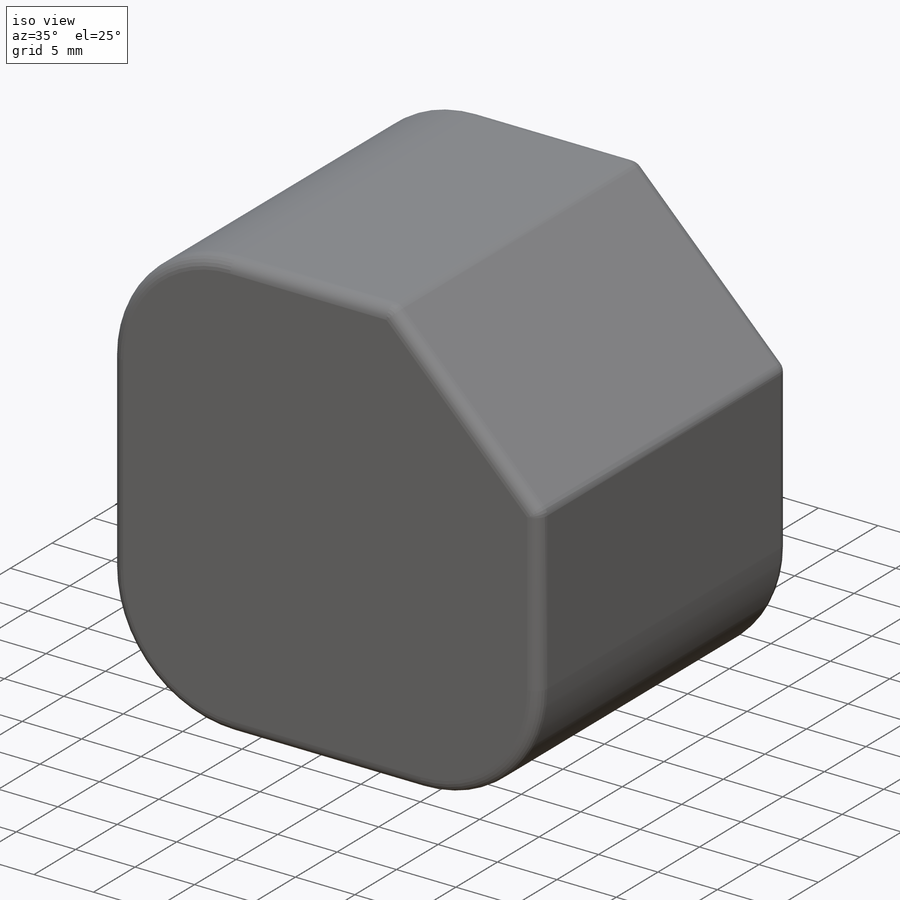
[diagram: iso view]
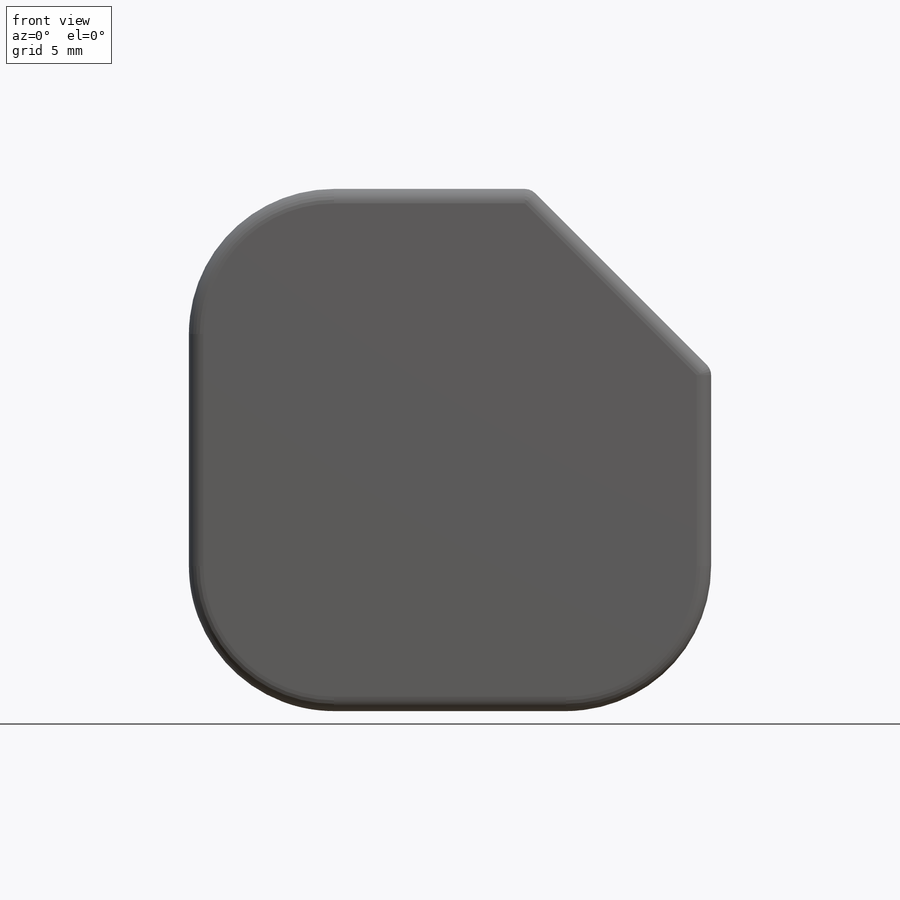
[diagram: front view]
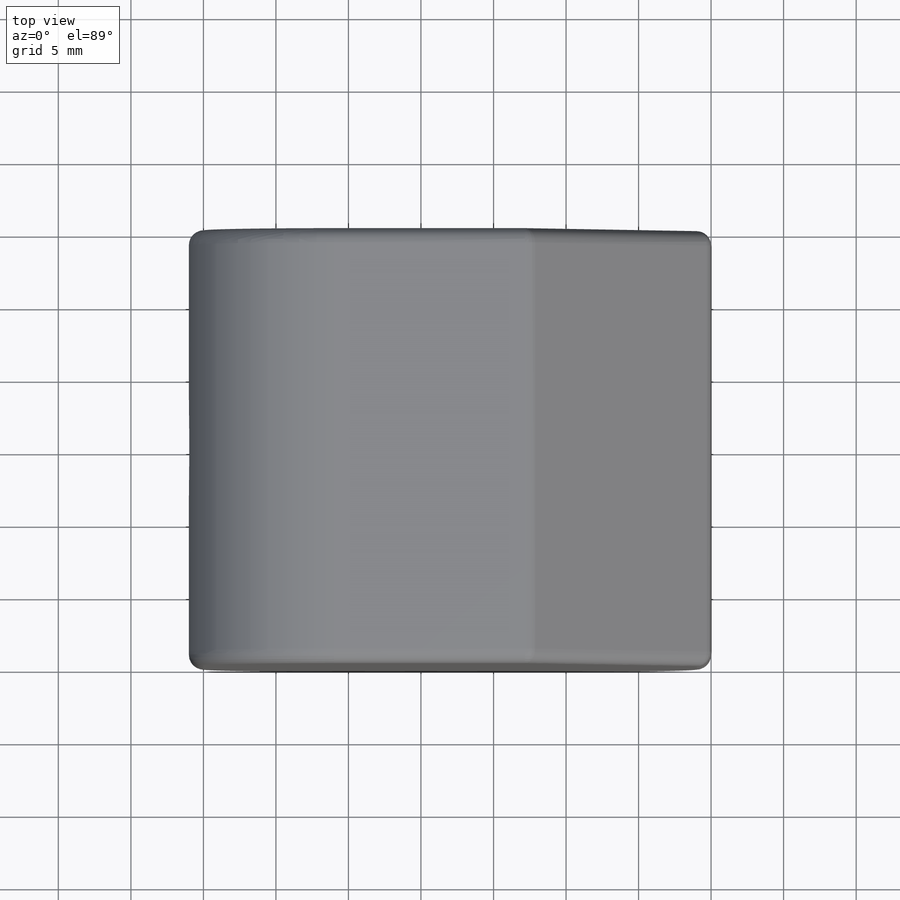
[diagram: top view]
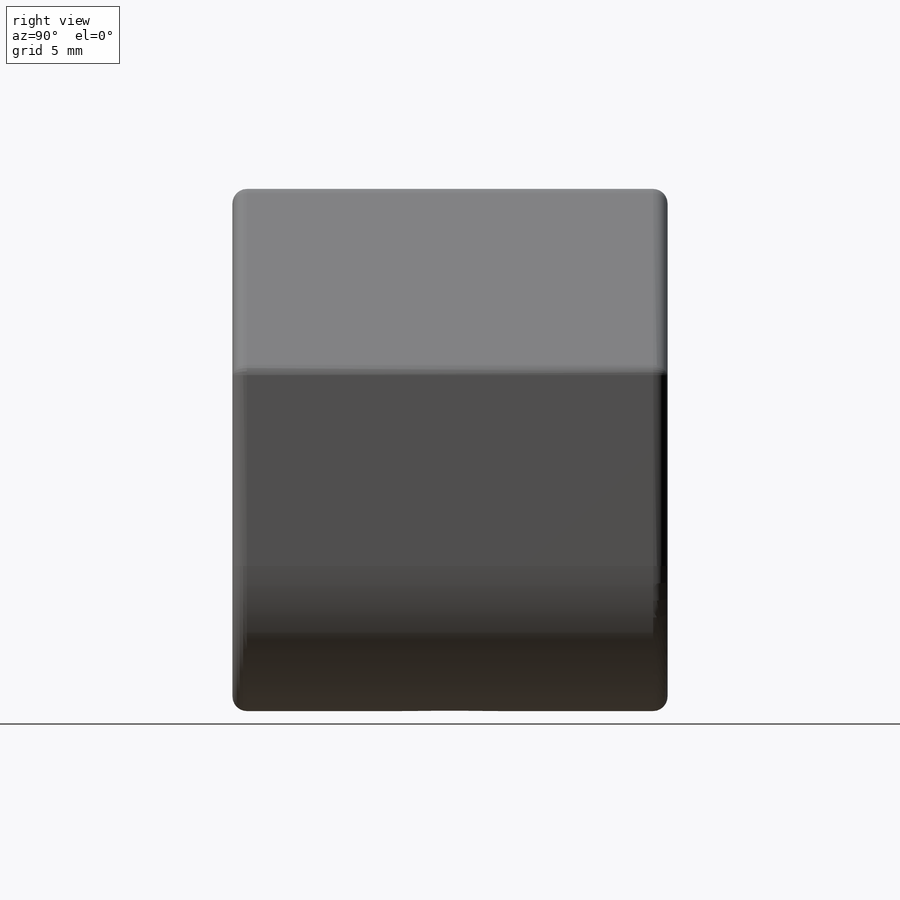
[diagram: right view]
SOLIDWORKS PART (.sldprt)
format: sldprt  version: not decoded by parser v0  size: 423,424 bytes
history: native  units: mm
features: sketch x11, thread x5, cut_extrude x3, hole x3, fillet x2, material x1, extrude x1 (+16 scaffold rows collapsed)
feature tree (42):
  scaffold x16  (default folders/planes/origin — collapsed)
  material  "Stainless Steel (ferritic)"
  sketch  "Sketch1"  dims[D1=36.0mm]
  extrude  "Boss-Extrude1"  Depth=30mm
  sketch  "Sketch2"  dims[D2=20.0mm D1=16.706mm]
  cut_extrude  "Cut-Extrude1"  Depth=4mm
  sketch  "Sketch4"  dims[D2=20.0mm D1=16.706mm]
  cut_extrude  "Cut-Extrude2"  Depth=4mm
  hole  "M8x1.0 Tapped Hole1"  Diameter=7mm Depth=15mm
  sketch  "Sketch6"
  sketch  "Sketch5"  dims[hole-wizard template sketch: 46 standard entries collapsed; hole parameters kept: c15.Tap Drill Dia.=7.0mm c15.Tap Drill Depth=15.0mm c15.D3=~14.816244mm c15.Drill Angle=118.0deg]
  thread  "Hole Thread1"  Diameter=12mm  [1 undecoded]
  hole  "M8x1.0 Tapped Hole2"  Diameter=7mm Depth=15mm
  sketch  "Sketch8"
  sketch  "Sketch7"  dims[hole-wizard template sketch: 46 standard entries collapsed; hole parameters kept: c15.Tap Drill Dia.=7.0mm c15.Tap Drill Depth=15.0mm c15.D3=~14.816244mm c15.Drill Angle=118.0deg]
  thread  "Hole Thread2"  Diameter=12mm  [1 undecoded]
  fillet  "Fillet1"  Radius=10mm
  hole  "M4x0.7 Tapped Hole1"  Diameter=3.3mm Depth=10.1mm
  sketch  "Sketch11"  dims[c1.D2=30.0mm c1.D1=16.706mm c2.D2=~13.70679mm c2.D3=15.0mm c3.D3=120.0deg c3.D4=~4.530655mm c4.D4=120.0deg]
  sketch  "Sketch10"  dims[hole-wizard template sketch: 50 standard entries collapsed; hole parameters above]
  thread  "Hole Thread3"  Diameter=8mm  [1 undecoded]
  thread  "Hole Thread4"  Diameter=8mm  [1 undecoded]
  thread  "Hole Thread5"  Diameter=8mm  [1 undecoded]
  sketch  "Sketch12"  dims[D1=7.0mm]
  cut_extrude  "Cut-Extrude3"  [1 undecoded]
  sketch  "Sketch13"  dims[D1=16.706mm]
  fillet  "Fillet2"  Radius=1mm
decode coverage: 22 of 25 modeling features carry decoded parameters
note: ~ marks probable driven/reference dimensions
note: 6 parameter values undecoded
note: suppression state not decoded; provenance and decode notes live in map.json
